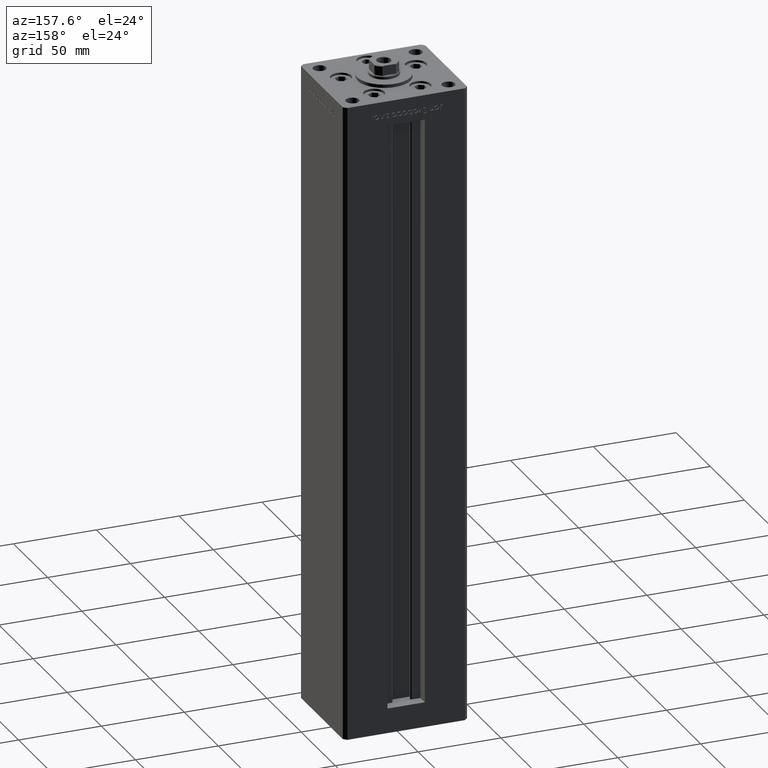
[diagram: clean part render]
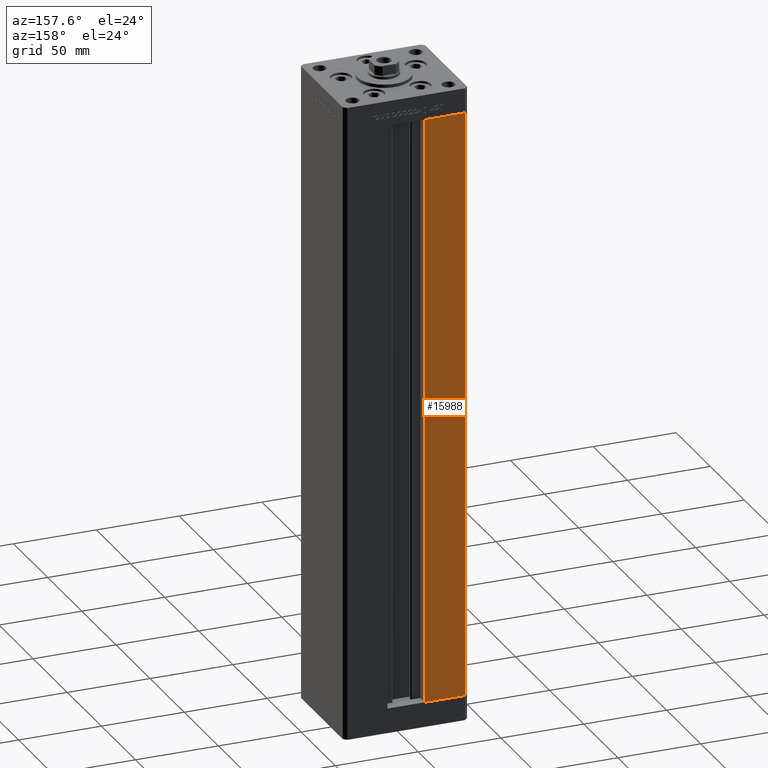
[diagram: same view with one face highlighted and labeled with its STEP entity id]
A machine part, auxiliary view. The second image highlights one B-rep face of the part: STEP entity #15988.
In plain terms, the highlighted planar face has unit normal (0, -1, 0).
Its self-contained STEP definition (entity closure, byte-faithful):
#685 = DIRECTION ( 'NONE',  ( -1.000000000000000000, 0.000000000000000000, 0.000000000000000000 ) ) ;
#1692 = VERTEX_POINT ( 'NONE', #38432 ) ;
#2178 = VECTOR ( 'NONE', #22438, 1000.000000000000000 ) ;
#4240 = LINE ( 'NONE', #16919, #46087 ) ;
#4591 = EDGE_LOOP ( 'NONE', ( #30153, #47521, #47125, #7605 ) ) ;
#6174 = PLANE ( 'NONE',  #6763 ) ;
#6763 = AXIS2_PLACEMENT_3D ( 'NONE', #22271, #29930, #13579 ) ;
#7605 = ORIENTED_EDGE ( 'NONE', *, *, #20223, .F. ) ;
#8460 = EDGE_CURVE ( 'NONE', #31729, #28869, #4240, .T. ) ;
#13579 = DIRECTION ( 'NONE',  ( 0.000000000000000000, -0.000000000000000000, -1.000000000000000000 ) ) ;
#14528 = LINE ( 'NONE', #46993, #2178 ) ;
#15988 = ADVANCED_FACE ( 'NONE', ( #49741 ), #6174, .F. ) ;
#16919 = CARTESIAN_POINT ( 'NONE',  ( -11.25000000000000178, 32.49999999999999289, 0.000000000000000000 ) ) ;
#20022 = CARTESIAN_POINT ( 'NONE',  ( -35.50000000000000000, 32.49999999999999289, 356.0000000000000000 ) ) ;
#20223 = EDGE_CURVE ( 'NONE', #21774, #1692, #36366, .T. ) ;
#20741 = LINE ( 'NONE', #36822, #35098 ) ;
#21774 = VERTEX_POINT ( 'NONE', #50549 ) ;
#22271 = CARTESIAN_POINT ( 'NONE',  ( -11.25000000000000178, 32.49999999999999289, 356.0000000000000000 ) ) ;
#22438 = DIRECTION ( 'NONE',  ( 1.000000000000000000, 0.000000000000000000, 0.000000000000000000 ) ) ;
#24603 = CARTESIAN_POINT ( 'NONE',  ( -11.25000000000000178, 32.49999999999999289, 0.000000000000000000 ) ) ;
#28869 = VERTEX_POINT ( 'NONE', #35288 ) ;
#29930 = DIRECTION ( 'NONE',  ( 0.000000000000000000, -1.000000000000000000, 0.000000000000000000 ) ) ;
#30153 = ORIENTED_EDGE ( 'NONE', *, *, #37692, .T. ) ;
#31729 = VERTEX_POINT ( 'NONE', #24603 ) ;
#32998 = DIRECTION ( 'NONE',  ( -0.000000000000000000, -0.000000000000000000, 1.000000000000000000 ) ) ;
#35098 = VECTOR ( 'NONE', #685, 1000.000000000000000 ) ;
#35288 = CARTESIAN_POINT ( 'NONE',  ( -11.25000000000000178, 32.49999999999999289, 356.0000000000000000 ) ) ;
#36107 = DIRECTION ( 'NONE',  ( -0.000000000000000000, -0.000000000000000000, -1.000000000000000000 ) ) ;
#36366 = LINE ( 'NONE', #20022, #38884 ) ;
#36822 = CARTESIAN_POINT ( 'NONE',  ( -11.25000000000000178, 32.49999999999999289, 0.000000000000000000 ) ) ;
#37692 = EDGE_CURVE ( 'NONE', #21774, #28869, #14528, .T. ) ;
#38432 = CARTESIAN_POINT ( 'NONE',  ( -35.50000000000000000, 32.49999999999999289, 0.000000000000000000 ) ) ;
#38884 = VECTOR ( 'NONE', #36107, 1000.000000000000000 ) ;
#41072 = EDGE_CURVE ( 'NONE', #31729, #1692, #20741, .T. ) ;
#46087 = VECTOR ( 'NONE', #32998, 1000.000000000000000 ) ;
#46993 = CARTESIAN_POINT ( 'NONE',  ( -11.25000000000000178, 32.49999999999999289, 356.0000000000000000 ) ) ;
#47125 = ORIENTED_EDGE ( 'NONE', *, *, #41072, .T. ) ;
#47521 = ORIENTED_EDGE ( 'NONE', *, *, #8460, .F. ) ;
#49741 = FACE_OUTER_BOUND ( 'NONE', #4591, .T. ) ;
#50549 = CARTESIAN_POINT ( 'NONE',  ( -35.50000000000000000, 32.49999999999999289, 356.0000000000000000 ) ) ;